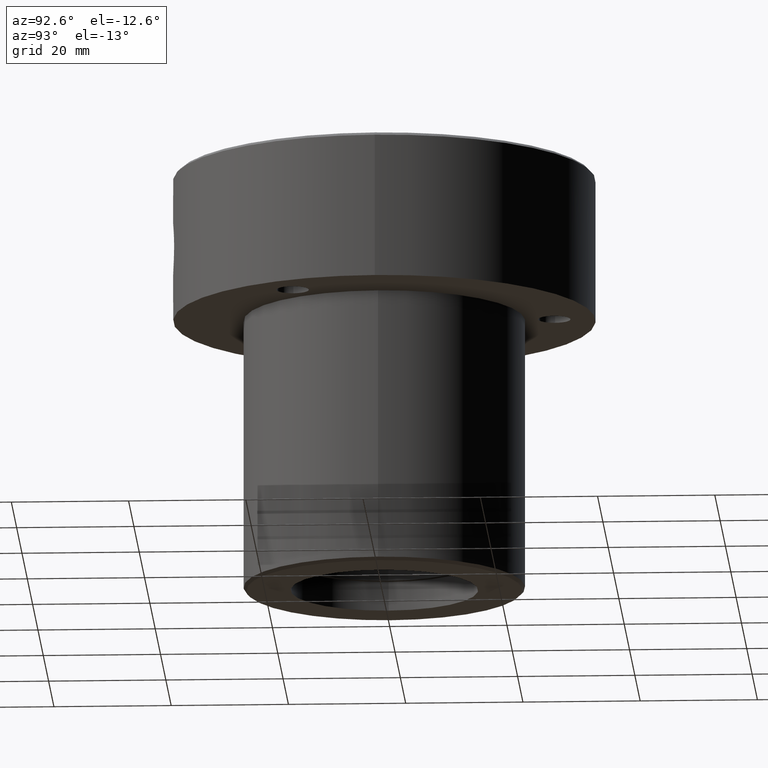
[diagram: clean part render]
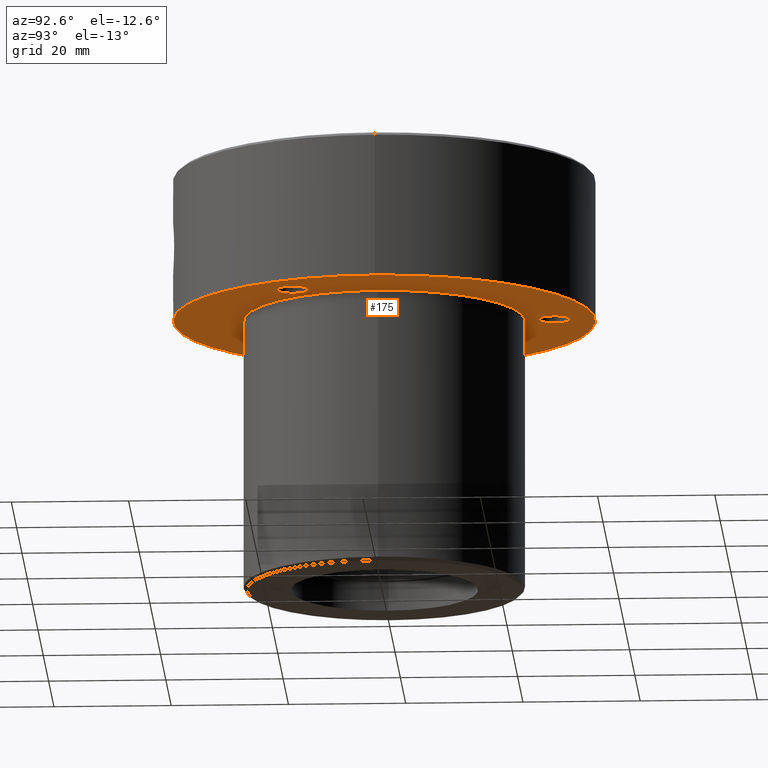
[diagram: same view with one face highlighted and labeled with its STEP entity id]
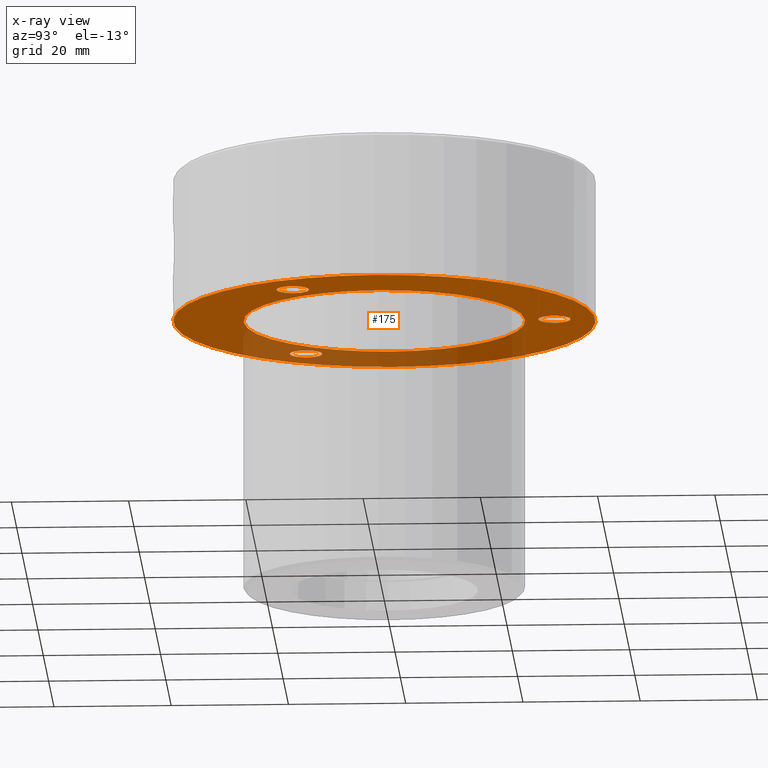
[diagram: x-ray of the same camera — body ghosted, the highlighted face saturated]
A machine part, auxiliary view. The second image highlights one B-rep face of the part: STEP entity #175.
The next image is the same camera in x-ray: the body ghosted, the highlighted face saturated — about 30% of this face is hidden behind the body in this view.
In plain terms, the highlighted planar face has unit normal (0, 0, -1).
Its self-contained STEP definition (entity closure, byte-faithful):
#2 = ORIENTED_EDGE ( 'NONE', *, *, #1034, .F. ) ;
#15 = CARTESIAN_POINT ( 'NONE',  ( 0.000000000000000000, 0.000000000000000000, -24.99999999999999289 ) ) ;
#55 = FACE_BOUND ( 'NONE', #1067, .T. ) ;
#58 = CARTESIAN_POINT ( 'NONE',  ( 0.000000000000000000, 29.00000000000000000, -24.99999999999999289 ) ) ;
#61 = CARTESIAN_POINT ( 'NONE',  ( 22.36473670974866579, -14.50000000000011013, -24.99999999999999289 ) ) ;
#66 = AXIS2_PLACEMENT_3D ( 'NONE', #1061, #582, #870 ) ;
#70 = AXIS2_PLACEMENT_3D ( 'NONE', #1078, #592, #316 ) ;
#84 = VERTEX_POINT ( 'NONE', #855 ) ;
#88 = ORIENTED_EDGE ( 'NONE', *, *, #1176, .T. ) ;
#94 = ORIENTED_EDGE ( 'NONE', *, *, #259, .T. ) ;
#143 = VERTEX_POINT ( 'NONE', #475 ) ;
#163 = DIRECTION ( 'NONE',  ( -0.000000000000000000, -0.000000000000000000, 1.000000000000000000 ) ) ;
#175 = ADVANCED_FACE ( 'NONE', ( #211, #943, #541, #55, #1210 ), #1127, .T. ) ;
#211 = FACE_BOUND ( 'NONE', #636, .T. ) ;
#235 = DIRECTION ( 'NONE',  ( -1.000000000000000000, 0.000000000000000000, -0.000000000000000000 ) ) ;
#243 = EDGE_CURVE ( 'NONE', #747, #825, #454, .T. ) ;
#259 = EDGE_CURVE ( 'NONE', #537, #627, #549, .T. ) ;
#267 = EDGE_CURVE ( 'NONE', #1024, #1027, #439, .T. ) ;
#271 = DIRECTION ( 'NONE',  ( -1.000000000000000000, 0.000000000000000000, 0.000000000000000000 ) ) ;
#279 = CARTESIAN_POINT ( 'NONE',  ( -27.86473670974874750, -14.49999999999994316, -24.99999999999999289 ) ) ;
#281 = CARTESIAN_POINT ( 'NONE',  ( -25.11473670974875105, -14.49999999999994316, -24.99999999999999289 ) ) ;
#283 = CARTESIAN_POINT ( 'NONE',  ( 0.000000000000000000, 0.000000000000000000, -24.99999999999999289 ) ) ;
#294 = DIRECTION ( 'NONE',  ( -0.000000000000000000, -0.000000000000000000, 1.000000000000000000 ) ) ;
#316 = DIRECTION ( 'NONE',  ( -1.000000000000000000, 0.000000000000000000, 0.000000000000000000 ) ) ;
#339 = EDGE_LOOP ( 'NONE', ( #898, #996 ) ) ;
#356 = EDGE_CURVE ( 'NONE', #444, #143, #710, .T. ) ;
#383 = EDGE_CURVE ( 'NONE', #637, #84, #970, .T. ) ;
#389 = ORIENTED_EDGE ( 'NONE', *, *, #243, .F. ) ;
#436 = CIRCLE ( 'NONE', #628, 2.749999999999995559 ) ;
#439 = CIRCLE ( 'NONE', #583, 2.749999999999995559 ) ;
#444 = VERTEX_POINT ( 'NONE', #716 ) ;
#454 = CIRCLE ( 'NONE', #70, 2.749999999999992006 ) ;
#457 = CARTESIAN_POINT ( 'NONE',  ( 0.000000000000000000, 29.00000000000000000, -24.99999999999999289 ) ) ;
#462 = DIRECTION ( 'NONE',  ( 0.000000000000000000, 0.000000000000000000, -1.000000000000000000 ) ) ;
#475 = CARTESIAN_POINT ( 'NONE',  ( -2.749999999999993783, 29.00000000000000000, -24.99999999999999289 ) ) ;
#482 = ORIENTED_EDGE ( 'NONE', *, *, #1247, .F. ) ;
#484 = DIRECTION ( 'NONE',  ( 1.000000000000000000, 0.000000000000000000, 0.000000000000000000 ) ) ;
#523 = AXIS2_PLACEMENT_3D ( 'NONE', #15, #983, #900 ) ;
#537 = VERTEX_POINT ( 'NONE', #1104 ) ;
#541 = FACE_BOUND ( 'NONE', #339, .T. ) ;
#549 = CIRCLE ( 'NONE', #862, 24.00000000000000000 ) ;
#551 = DIRECTION ( 'NONE',  ( -0.000000000000000000, -0.000000000000000000, 1.000000000000000000 ) ) ;
#555 = CARTESIAN_POINT ( 'NONE',  ( 0.000000000000000000, 0.000000000000000000, -24.99999999999999289 ) ) ;
#582 = DIRECTION ( 'NONE',  ( 0.000000000000000000, 0.000000000000000000, -1.000000000000000000 ) ) ;
#583 = AXIS2_PLACEMENT_3D ( 'NONE', #281, #972, #271 ) ;
#592 = DIRECTION ( 'NONE',  ( 0.000000000000000000, 0.000000000000000000, -1.000000000000000000 ) ) ;
#613 = CARTESIAN_POINT ( 'NONE',  ( -36.00000000000000000, 4.408728476930470856E-15, -24.99999999999999289 ) ) ;
#624 = CIRCLE ( 'NONE', #66, 2.749999999999992006 ) ;
#627 = VERTEX_POINT ( 'NONE', #763 ) ;
#628 = AXIS2_PLACEMENT_3D ( 'NONE', #1103, #1096, #1109 ) ;
#636 = EDGE_LOOP ( 'NONE', ( #482, #1188 ) ) ;
#637 = VERTEX_POINT ( 'NONE', #613 ) ;
#656 = CARTESIAN_POINT ( 'NONE',  ( 0.000000000000000000, 36.00000000000000000, -24.99999999999999289 ) ) ;
#670 = DIRECTION ( 'NONE',  ( 1.000000000000000000, 0.000000000000000000, 0.000000000000000000 ) ) ;
#681 = CARTESIAN_POINT ( 'NONE',  ( -22.36473670974875461, -14.49999999999994316, -24.99999999999999289 ) ) ;
#710 = CIRCLE ( 'NONE', #975, 2.749999999999993783 ) ;
#716 = CARTESIAN_POINT ( 'NONE',  ( 2.749999999999993783, 29.00000000000000000, -24.99999999999999289 ) ) ;
#743 = DIRECTION ( 'NONE',  ( -1.000000000000000000, 0.000000000000000000, 0.000000000000000000 ) ) ;
#747 = VERTEX_POINT ( 'NONE', #61 ) ;
#749 = AXIS2_PLACEMENT_3D ( 'NONE', #283, #294, #484 ) ;
#763 = CARTESIAN_POINT ( 'NONE',  ( -24.00000000000000000, 2.939152317953647894E-15, -24.99999999999999289 ) ) ;
#825 = VERTEX_POINT ( 'NONE', #848 ) ;
#831 = EDGE_LOOP ( 'NONE', ( #1120, #1169 ) ) ;
#839 = DIRECTION ( 'NONE',  ( 0.000000000000000000, 0.000000000000000000, -1.000000000000000000 ) ) ;
#843 = EDGE_CURVE ( 'NONE', #143, #444, #971, .T. ) ;
#847 = DIRECTION ( 'NONE',  ( 0.000000000000000000, 0.000000000000000000, -1.000000000000000000 ) ) ;
#848 = CARTESIAN_POINT ( 'NONE',  ( 27.86473670974864802, -14.50000000000011013, -24.99999999999999289 ) ) ;
#855 = CARTESIAN_POINT ( 'NONE',  ( 36.00000000000000000, 0.000000000000000000, -24.99999999999999289 ) ) ;
#860 = CIRCLE ( 'NONE', #749, 24.00000000000000000 ) ;
#862 = AXIS2_PLACEMENT_3D ( 'NONE', #867, #551, #1132 ) ;
#867 = CARTESIAN_POINT ( 'NONE',  ( 0.000000000000000000, 0.000000000000000000, -24.99999999999999289 ) ) ;
#870 = DIRECTION ( 'NONE',  ( -1.000000000000000000, 0.000000000000000000, 0.000000000000000000 ) ) ;
#898 = ORIENTED_EDGE ( 'NONE', *, *, #356, .F. ) ;
#900 = DIRECTION ( 'NONE',  ( 1.000000000000000000, 0.000000000000000000, 0.000000000000000000 ) ) ;
#936 = AXIS2_PLACEMENT_3D ( 'NONE', #656, #839, #235 ) ;
#943 = FACE_BOUND ( 'NONE', #1099, .T. ) ;
#970 = CIRCLE ( 'NONE', #1140, 36.00000000000000000 ) ;
#971 = CIRCLE ( 'NONE', #1224, 2.749999999999993783 ) ;
#972 = DIRECTION ( 'NONE',  ( 0.000000000000000000, 0.000000000000000000, -1.000000000000000000 ) ) ;
#975 = AXIS2_PLACEMENT_3D ( 'NONE', #58, #847, #743 ) ;
#983 = DIRECTION ( 'NONE',  ( -0.000000000000000000, -0.000000000000000000, 1.000000000000000000 ) ) ;
#996 = ORIENTED_EDGE ( 'NONE', *, *, #843, .F. ) ;
#1024 = VERTEX_POINT ( 'NONE', #279 ) ;
#1027 = VERTEX_POINT ( 'NONE', #681 ) ;
#1031 = CIRCLE ( 'NONE', #523, 36.00000000000000000 ) ;
#1034 = EDGE_CURVE ( 'NONE', #825, #747, #624, .T. ) ;
#1061 = CARTESIAN_POINT ( 'NONE',  ( 25.11473670974865868, -14.50000000000011013, -24.99999999999999289 ) ) ;
#1067 = EDGE_LOOP ( 'NONE', ( #94, #88 ) ) ;
#1078 = CARTESIAN_POINT ( 'NONE',  ( 25.11473670974865868, -14.50000000000011013, -24.99999999999999289 ) ) ;
#1096 = DIRECTION ( 'NONE',  ( 0.000000000000000000, 0.000000000000000000, -1.000000000000000000 ) ) ;
#1099 = EDGE_LOOP ( 'NONE', ( #2, #389 ) ) ;
#1103 = CARTESIAN_POINT ( 'NONE',  ( -25.11473670974875105, -14.49999999999994316, -24.99999999999999289 ) ) ;
#1104 = CARTESIAN_POINT ( 'NONE',  ( 24.00000000000000000, 0.000000000000000000, -24.99999999999999289 ) ) ;
#1109 = DIRECTION ( 'NONE',  ( -1.000000000000000000, 0.000000000000000000, 0.000000000000000000 ) ) ;
#1120 = ORIENTED_EDGE ( 'NONE', *, *, #1138, .F. ) ;
#1127 = PLANE ( 'NONE',  #936 ) ;
#1132 = DIRECTION ( 'NONE',  ( 1.000000000000000000, 0.000000000000000000, 0.000000000000000000 ) ) ;
#1138 = EDGE_CURVE ( 'NONE', #84, #637, #1031, .T. ) ;
#1140 = AXIS2_PLACEMENT_3D ( 'NONE', #555, #163, #670 ) ;
#1169 = ORIENTED_EDGE ( 'NONE', *, *, #383, .F. ) ;
#1176 = EDGE_CURVE ( 'NONE', #627, #537, #860, .T. ) ;
#1188 = ORIENTED_EDGE ( 'NONE', *, *, #267, .F. ) ;
#1210 = FACE_OUTER_BOUND ( 'NONE', #831, .T. ) ;
#1224 = AXIS2_PLACEMENT_3D ( 'NONE', #457, #462, #1235 ) ;
#1235 = DIRECTION ( 'NONE',  ( -1.000000000000000000, 0.000000000000000000, 0.000000000000000000 ) ) ;
#1247 = EDGE_CURVE ( 'NONE', #1027, #1024, #436, .T. ) ;